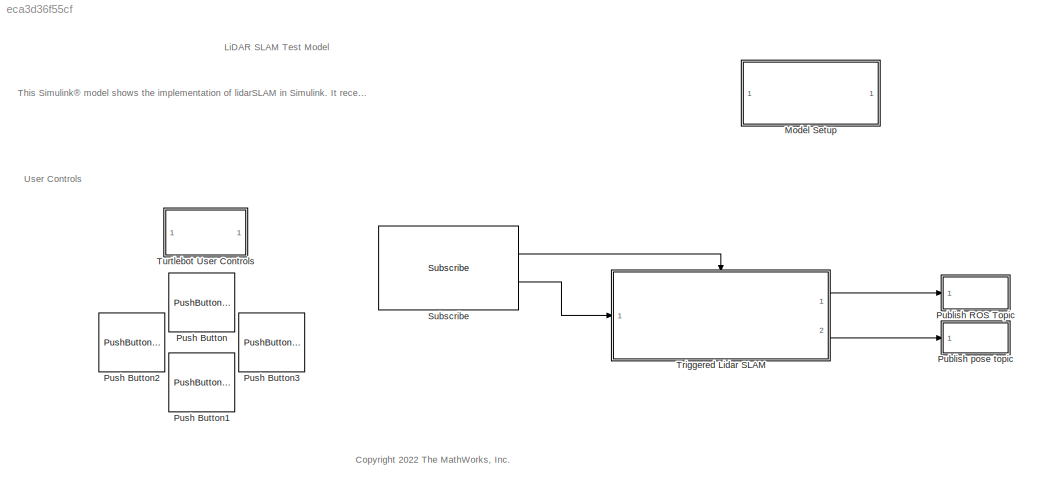
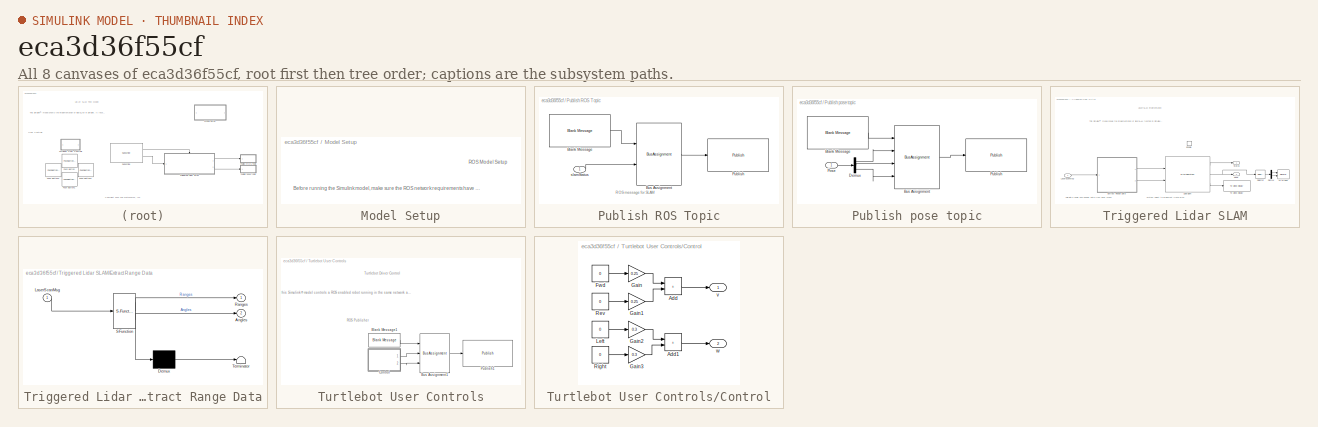
[diagram: thumbnail index - all 8 canvases of the model, root first then tree order]
MODEL slx_eca3d36f55cf
KIND model
CONFIG AbsTol = auto
CONFIG EnableMultiTasking = off
CONFIG FixedStep = auto
CONFIG MaxStep = auto
CONFIG MinStep = auto
CONFIG RelTol = 1e-3
CONFIG SampleTimeConstraint = Unconstrained
CONFIG SolverName = FixedStepAuto
CONFIG StartTime = 0.0
CONFIG StopTime = inf
WORKSPACE source: mxarray member
WORKSPACE SL_ROS_VariableLengthArrays_MaxSizes: object (value not decoded)
BLOCK [SubSystem] Model Setup
  Ports = []
BLOCK [SubSystem] Publish ROS Topic
  Ports = [1]
BLOCK [Reference] Publish ROS Topic/Blank Message  REF=robotlib/Blank Message
  Ports = [0, 1]
  SourceBlock = robotlib/Blank Message
  SourceType = ROS Blank Message
BLOCK [BusAssignment] Publish ROS Topic/Bus Assignment
  AssignedSignals = Data
  Ports = [2, 1]
BLOCK [Reference] Publish ROS Topic/Publish  REF=robotlib/Publish
  Ports = [1]
  SourceBlock = robotlib/Publish
  SourceType = ROS Publish
BLOCK [Inport] Publish ROS Topic/slamStatus
BLOCK [SubSystem] Publish pose topic
  Ports = [1]
BLOCK [Reference] Publish pose topic/Blank Message  REF=robotlib/Blank Message
  Ports = [0, 1]
  SourceBlock = robotlib/Blank Message
  SourceType = ROS Blank Message
BLOCK [BusAssignment] Publish pose topic/Bus Assignment
  AssignedSignals = X,Y,Theta
  Ports = [4, 1]
BLOCK [Demux] Publish pose topic/Demux
  Outputs = 3
  Ports = [1, 3]
BLOCK [Inport] Publish pose topic/Pose
  NameLocation = top
BLOCK [Reference] Publish pose topic/Publish  REF=robotlib/Publish
  Ports = [1]
  SourceBlock = robotlib/Publish
  SourceType = ROS Publish
BLOCK [PushButtonBlock] Push Button
  ButtonText = Fwd
  OffValue = 0.000000
BLOCK [PushButtonBlock] Push Button1
  ButtonText = Rev
  OffValue = 0.000000
  OnValue = -1
BLOCK [PushButtonBlock] Push Button2
  ButtonText = Left
  OffValue = 0.000000
BLOCK [PushButtonBlock] Push Button3
  ButtonText = Right
  OffValue = 0.000000
  OnValue = -1
BLOCK [Reference] Subscribe  REF=robotlib/Subscribe
  Ports = [0, 2]
  SourceBlock = robotlib/Subscribe
  SourceType = ROS Subscribe
BLOCK [SubSystem] Triggered Lidar SLAM
  Ports = [1, 2, 1]
BLOCK [Demux] Triggered Lidar SLAM/Demux
  Outputs = 2
  Ports = [1, 2]
BLOCK [EnablePort] Triggered Lidar SLAM/Enable
  Ports = []
  PropagateVarSize = During execution
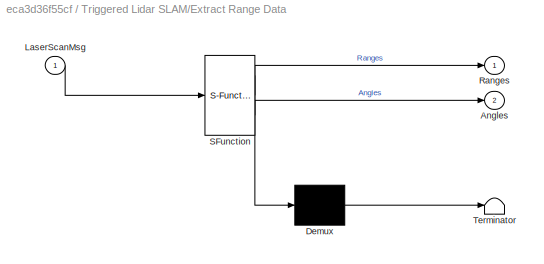
BLOCK [SubSystem] Triggered Lidar SLAM/Extract Range Data
  ErrorFcn = Stateflow.Translate.translate
  PermitHierarchicalResolution = ExplicitOnly
  Ports = [1, 2]
  SFBlockType = MATLAB Function
  TreatAsAtomicUnit = on
BLOCK [Demux] Triggered Lidar SLAM/Extract Range Data/ Demux 
  Outputs = 1
  Ports = [1, 1]
BLOCK [S-Function] Triggered Lidar SLAM/Extract Range Data/ SFunction 
  EnableBusSupport = on
  FunctionName = sf_sfun
  PortCounts = [1 3]
  Ports = [1, 3]
  SFcnIsStateOwnerBlock = off
  SFunctionDeploymentMode = off
  Tag = Stateflow S-Function 5
BLOCK [Terminator] Triggered Lidar SLAM/Extract Range Data/ Terminator 
BLOCK [Outport] Triggered Lidar SLAM/Extract Range Data/Angles
  Port = 2
  VectorParamsAs1DForOutWhenUnconnected = off
BLOCK [Inport] Triggered Lidar SLAM/Extract Range Data/LaserScanMsg
BLOCK [Outport] Triggered Lidar SLAM/Extract Range Data/Ranges
  VectorParamsAs1DForOutWhenUnconnected = off
BLOCK [Inport] Triggered Lidar SLAM/LaserScanMsg
  NameLocation = top
BLOCK [MATLABSystem] Triggered Lidar SLAM/LidarSlam
  MaskDisplay = disp('LidarSlam_interp');\nport_label('input',1,'ranges');\nport_label('input',2,'angles');\nport_label('output',1,'slamStatus');\nport_label('output',2,'pose');\nport_label('output',3,'mapData');
  MaskType = LidarSlam_interp
  Ports = [2, 3]
  SimulateUsing = Interpreted execution
  System = LidarSlam_interp
BLOCK [Outport] Triggered Lidar SLAM/Pose
  Port = 2
BLOCK [Selector] Triggered Lidar SLAM/Selector
  IndexOptions = Index vector (dialog)
  Indices = [1 2]
  InputPortWidth = 3
  OutputSizes = 1
  Ports = [1, 1]
BLOCK [Outport] Triggered Lidar SLAM/Status
BLOCK [Reference] Triggered Lidar SLAM/To Video Display  REF=visionsinks/To Video Display
  Ports = [1]
  SourceBlock = visionsinks/To Video Display
  SourceType = To Video Display
BLOCK [Record] Triggered Lidar SLAM/XY Graph
  CompatibilityTag = XY
  FileSettingsInternal = {"entries":[{"content":{"excelSettings":{"content":{},"type":"Streamout.ExcelSettings"}},"type":"Streamout.FileSettingStorage","uuid":"e6529120-ae98-45b0-a233-f6222d18b903"}],"packageUris":["http://schema.mathworks.com/mf0/streamout_blocks/R2020a"],"version":"1.0"}
  Layout = [1 1]
  Ports = [2]
  SignalsInternal = {"entries":[{"content":{"signals":[{"content":{"blockPath":["Lidar_Slam_Test_22a/Triggered Lidar SLAM/XY Graph"],"channel":[],"dimensions":[1,1],"domain":"Lidar_Slam_Test_22a/Triggered Lidar SLAM/XY Graph","lineColor":"#a2142f","plots":[1],"port":1,"sid":[],"signalID":659,"signalName":"Demux:1"},"type":"RecordBlkView.Signal","uuid":"5e7170b5-bad1-49cf-a93f-00d98687c61b"},{"content":{"blockPath":["...<+489ch>
  VisualizationBindings = {"xyplotplugin":{"info":[{"series":[{"bindingParametersList":[{"parameter":"X-Axis","signalID":659,"signalName":"Demux:1"},{"parameter":"Y-Axis","signalID":662,"signalName":"Demux:2"}],"seriesID":9056}],"subplotID":1}]}}
  st = -1
BLOCK [SubSystem] Turtlebot User Controls
  Ports = []
BLOCK [Reference] Turtlebot User Controls/Blank Message1  REF=robotlib/Blank Message
  Ports = [0, 1]
  SourceBlock = robotlib/Blank Message
  SourceType = ROS Blank Message
BLOCK [BusAssignment] Turtlebot User Controls/Bus Assignment1
  AssignedSignals = Linear.X,Angular.Z
  NameLocation = top
  Ports = [3, 1]
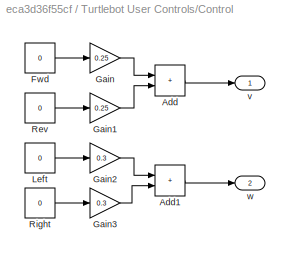
BLOCK [SubSystem] Turtlebot User Controls/Control
  Ports = [0, 2]
BLOCK [Sum] Turtlebot User Controls/Control/Add
  IconShape = rectangular
  Ports = [2, 1]
BLOCK [Sum] Turtlebot User Controls/Control/Add1
  IconShape = rectangular
  Ports = [2, 1]
BLOCK [Constant] Turtlebot User Controls/Control/Fwd
  Value = 0
BLOCK [Gain] Turtlebot User Controls/Control/Gain
  Gain = 0.25
BLOCK [Gain] Turtlebot User Controls/Control/Gain1
  Gain = 0.25
BLOCK [Gain] Turtlebot User Controls/Control/Gain2
  Gain = 0.3
BLOCK [Gain] Turtlebot User Controls/Control/Gain3
  Gain = 0.3
BLOCK [Constant] Turtlebot User Controls/Control/Left
  Value = 0
BLOCK [Constant] Turtlebot User Controls/Control/Rev
  Value = 0
BLOCK [Constant] Turtlebot User Controls/Control/Right
  Value = 0
BLOCK [Outport] Turtlebot User Controls/Control/v
BLOCK [Outport] Turtlebot User Controls/Control/w
  Port = 2
BLOCK [Reference] Turtlebot User Controls/Publish1  REF=robotlib/Publish
  Ports = [1]
  SourceBlock = robotlib/Publish
  SourceType = ROS Publish
ANNOTATION (root): This Simulink® model shows the implementation of lidarSLAM in Simulink. It receives as input Laser Scan data from a simulated turtlebot and uses the lidarSLAM object to determine robot position and generate a map
ANNOTATION (root): LiDAR SLAM Test Model
ANNOTATION (root): <copyright redacted>
ANNOTATION (root): User Controls
ANNOTATION Model Setup: Before running the Simulink model, make sure the ROS network requirements have been set appropriately through the Simulink Toolstrip. Note that setting a Node Host IP address is optional and depends on the computer setup.
ANNOTATION Model Setup: ROS Model Setup
ANNOTATION Publish ROS Topic: ROS message for SLAM
ANNOTATION Triggered Lidar SLAM: Calculate range and angular data from laser scans
ANNOTATION Triggered Lidar SLAM: System object to implement LIDAR SLAM
ANNOTATION Triggered Lidar SLAM: This Simulink® model shows the implementation of lidarSLAM function in Simulink. It takes in Laser Scan data from turtlebot and uses lidarSLAM function to generate a map
ANNOTATION Triggered Lidar SLAM: LiDAR SLAM implmentation
ANNOTATION Turtlebot User Controls: This Simulink® model controls a ROS enabled robot running in the same network as the host computer. The model sets the robot /cmd_vel topic interactively using dashboard buttons to drive the robot around a map with the intent of recording lidar scans to later build an environment map. To learn more visit the documentation examples for interacting with ROS using Simulink
ANNOTATION Turtlebot User Controls: Turtlebot Driver Control
ANNOTATION Turtlebot User Controls: ROS Publisher
LINE Publish ROS Topic/Blank Message:1 -> Publish ROS Topic/Bus Assignment:1
LINE Publish ROS Topic/Bus Assignment:1 -> Publish ROS Topic/Publish:1
LINE Publish ROS Topic/slamStatus:1 -> Publish ROS Topic/Bus Assignment:2
LINE Publish pose topic/Blank Message:1 -> Publish pose topic/Bus Assignment:1
LINE Publish pose topic/Bus Assignment:1 -> Publish pose topic/Publish:1
LINE Publish pose topic/Demux:1 -> Publish pose topic/Bus Assignment:2
LINE Publish pose topic/Demux:2 -> Publish pose topic/Bus Assignment:3
LINE Publish pose topic/Demux:3 -> Publish pose topic/Bus Assignment:4
LINE Publish pose topic/Pose:1 -> Publish pose topic/Demux:1
LINE Subscribe:1 -> Triggered Lidar SLAM:enable
LINE Subscribe:2 -> Triggered Lidar SLAM:1
LINE Triggered Lidar SLAM/Demux:1 -> Triggered Lidar SLAM/XY Graph:1
LINE Triggered Lidar SLAM/Demux:2 -> Triggered Lidar SLAM/XY Graph:2
LINE Triggered Lidar SLAM/Extract Range Data:1 -> Triggered Lidar SLAM/LidarSlam:1
LINE Triggered Lidar SLAM/Extract Range Data:2 -> Triggered Lidar SLAM/LidarSlam:2
LINE Triggered Lidar SLAM/LaserScanMsg:1 -> Triggered Lidar SLAM/Extract Range Data:1
LINE Triggered Lidar SLAM/LidarSlam:1 -> Triggered Lidar SLAM/Status:1
NET Triggered Lidar SLAM/LidarSlam:2 -> Triggered Lidar SLAM/Pose:1, Triggered Lidar SLAM/Selector:1
LINE Triggered Lidar SLAM/LidarSlam:3 -> Triggered Lidar SLAM/To Video Display:1
LINE Triggered Lidar SLAM/Selector:1 -> Triggered Lidar SLAM/Demux:1
LINE Triggered Lidar SLAM:1 -> Publish ROS Topic:1
LINE Triggered Lidar SLAM:2 -> Publish pose topic:1
LINE Turtlebot User Controls/Blank Message1:1 -> Turtlebot User Controls/Bus Assignment1:1
LINE Turtlebot User Controls/Bus Assignment1:1 -> Turtlebot User Controls/Publish1:1
LINE Turtlebot User Controls/Control/Add1:1 -> Turtlebot User Controls/Control/w:1
LINE Turtlebot User Controls/Control/Add:1 -> Turtlebot User Controls/Control/v:1
LINE Turtlebot User Controls/Control/Fwd:1 -> Turtlebot User Controls/Control/Gain:1
LINE Turtlebot User Controls/Control/Gain1:1 -> Turtlebot User Controls/Control/Add:2
LINE Turtlebot User Controls/Control/Gain2:1 -> Turtlebot User Controls/Control/Add1:1
LINE Turtlebot User Controls/Control/Gain3:1 -> Turtlebot User Controls/Control/Add1:2
LINE Turtlebot User Controls/Control/Gain:1 -> Turtlebot User Controls/Control/Add:1
LINE Turtlebot User Controls/Control/Left:1 -> Turtlebot User Controls/Control/Gain2:1
LINE Turtlebot User Controls/Control/Rev:1 -> Turtlebot User Controls/Control/Gain1:1
LINE Turtlebot User Controls/Control/Right:1 -> Turtlebot User Controls/Control/Gain3:1
LINE Turtlebot User Controls/Control:1 -> Turtlebot User Controls/Bus Assignment1:2
LINE Turtlebot User Controls/Control:2 -> Turtlebot User Controls/Bus Assignment1:3
note: NET lines group one-source signal fan-out (src -> all destinations, sorted); 1:1 wires keep LINE
CHART Triggered Lidar SLAM/Extract Range Data states=1 transitions=1
  STATE_LABEL 'eML_blk_kernel()'
  STATE_LABEL "SCRIPT:\nfunction [Ranges, Angles] = ExtractRangeData(LaserScanMsg)\n%#codegen\n\n% Extract Range information\nRanges = double(LaserScanMsg.Ranges);\n\n% Construct Angles vector using AngleMin and AngleIncrement from sensor\n% reading.\nangMin = double(LaserScanMsg.AngleMin);\nangIncrement = double(LaserScanMsg.AngleIncrement);\n\nnumReadings = numel(Ranges);\nrawAngles = angMin + (0:numReadings-1)' * angIncre...<+106ch>"
CHART  states=0 transitions=0
